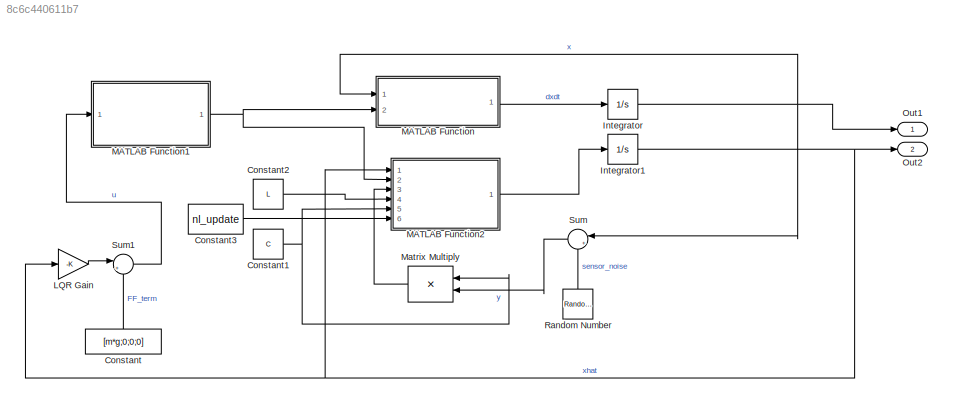
MODEL slx_8c6c440611b7
KIND model
CONFIG AbsTol = auto
CONFIG EnableMultiTasking = off
CONFIG FixedStep = auto
CONFIG MaxStep = auto
CONFIG MinStep = auto
CONFIG RelTol = 1e-3
CONFIG SampleTimeConstraint = Unconstrained
CONFIG Solver = VariableStepAuto
CONFIG SolverName = VariableStepAuto
CONFIG StartTime = 0.0
CONFIG StopTime = 10.0
BLOCK [Constant] Constant
  Value = [m*g;0;0;0]
  VectorParams1D = off
BLOCK [Constant] Constant1
  Value = C
BLOCK [Constant] Constant2
  Value = L
BLOCK [Constant] Constant3
  Value = nl_update
BLOCK [Integrator] Integrator
  InitialCondition = x0
  Ports = [1, 1]
BLOCK [Integrator] Integrator1
  InitialCondition = xhat0
  Ports = [1, 1]
BLOCK [Gain] LQR Gain 
  Gain = -K
  Multiplication = Matrix(K*u)
  OutDataTypeStr = Inherit: Inherit via internal rule
  ParamDataTypeStr = Inherit: Inherit via internal rule
  SaturateOnIntegerOverflow = off
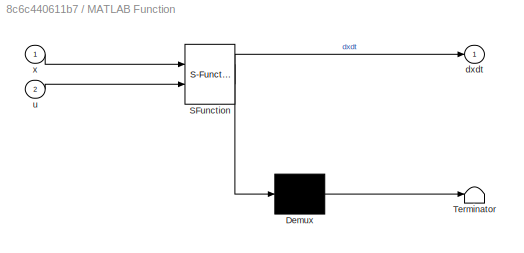
BLOCK [SubSystem] MATLAB Function
  ErrorFcn = Stateflow.Translate.translate
  PermitHierarchicalResolution = ExplicitOnly
  Ports = [2, 1]
  RequestExecContextInheritance = off
  SFBlockType = MATLAB Function
  TreatAsAtomicUnit = on
BLOCK [Demux] MATLAB Function/ Demux 
  Outputs = 1
  Ports = [1, 1]
BLOCK [S-Function] MATLAB Function/ SFunction 
  EnableBusSupport = on
  FunctionName = sf_sfun
  PortCounts = [2 2]
  Ports = [2, 2]
  SFcnIsStateOwnerBlock = off
  SFunctionDeploymentMode = off
  Tag = Stateflow S-Function quadrotor_linear_obsv_model_submission 2
BLOCK [Terminator] MATLAB Function/ Terminator 
BLOCK [Outport] MATLAB Function/dxdt
  IconDisplay = Port number
BLOCK [Inport] MATLAB Function/u
  IconDisplay = Port number
  Port = 2
BLOCK [Inport] MATLAB Function/x
  IconDisplay = Port number
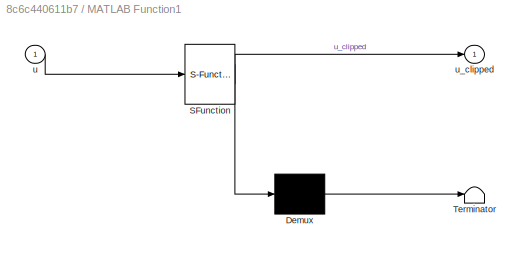
BLOCK [SubSystem] MATLAB Function1
  ErrorFcn = Stateflow.Translate.translate
  PermitHierarchicalResolution = ExplicitOnly
  Ports = [1, 1]
  RequestExecContextInheritance = off
  SFBlockType = MATLAB Function
  TreatAsAtomicUnit = on
BLOCK [Demux] MATLAB Function1/ Demux 
  Outputs = 1
  Ports = [1, 1]
BLOCK [S-Function] MATLAB Function1/ SFunction 
  EnableBusSupport = on
  FunctionName = sf_sfun
  PortCounts = [1 2]
  Ports = [1, 2]
  SFcnIsStateOwnerBlock = off
  SFunctionDeploymentMode = off
  Tag = Stateflow S-Function quadrotor_linear_obsv_model_submission 1
BLOCK [Terminator] MATLAB Function1/ Terminator 
BLOCK [Inport] MATLAB Function1/u
  IconDisplay = Port number
BLOCK [Outport] MATLAB Function1/u_clipped
  IconDisplay = Port number
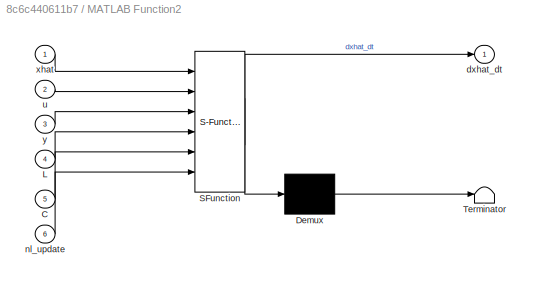
BLOCK [SubSystem] MATLAB Function2
  ErrorFcn = Stateflow.Translate.translate
  PermitHierarchicalResolution = ExplicitOnly
  Ports = [6, 1]
  RequestExecContextInheritance = off
  SFBlockType = MATLAB Function
  TreatAsAtomicUnit = on
BLOCK [Demux] MATLAB Function2/ Demux 
  Outputs = 1
  Ports = [1, 1]
BLOCK [S-Function] MATLAB Function2/ SFunction 
  EnableBusSupport = on
  FunctionName = sf_sfun
  PortCounts = [6 2]
  Ports = [6, 2]
  SFcnIsStateOwnerBlock = off
  SFunctionDeploymentMode = off
  Tag = Stateflow S-Function quadrotor_linear_obsv_model_submission 3
BLOCK [Terminator] MATLAB Function2/ Terminator 
BLOCK [Inport] MATLAB Function2/C
  IconDisplay = Port number
  Port = 5
BLOCK [Inport] MATLAB Function2/L
  IconDisplay = Port number
  Port = 4
BLOCK [Outport] MATLAB Function2/dxhat_dt
  IconDisplay = Port number
BLOCK [Inport] MATLAB Function2/nl_update
  IconDisplay = Port number
  Port = 6
BLOCK [Inport] MATLAB Function2/u
  IconDisplay = Port number
  Port = 2
BLOCK [Inport] MATLAB Function2/xhat
  IconDisplay = Port number
BLOCK [Inport] MATLAB Function2/y
  IconDisplay = Port number
  Port = 3
BLOCK [Product] Matrix Multiply
  InputSameDT = off
  Multiplication = Matrix(*)
  OutDataTypeStr = Inherit: Inherit via internal rule
  Ports = [2, 1]
  RndMeth = Floor
  SaturateOnIntegerOverflow = off
BLOCK [Outport] Out1
  IconDisplay = Port number
  SignalName = x
BLOCK [Outport] Out2
  IconDisplay = Port number
  Port = 2
  SignalName = xhat
BLOCK [RandomNumber] Random Number
  Mean = zeros(12,1)
  SampleTime = 0.1
  Variance = .0001*ones(12,1)
  VectorParams1D = off
BLOCK [Sum] Sum
  IconShape = round
  InputSameDT = off
  Inputs = |++
  OutDataTypeStr = Inherit: Inherit via internal rule
  Ports = [2, 1]
  SaturateOnIntegerOverflow = off
BLOCK [Sum] Sum1
  IconShape = round
  InputSameDT = off
  Inputs = |++
  OutDataTypeStr = Inherit: Inherit via internal rule
  Ports = [2, 1]
  SaturateOnIntegerOverflow = off
NET Constant1:1 -> MATLAB Function2:5, Matrix Multiply:1
LINE Constant2:1 -> MATLAB Function2:4
LINE Constant3:1 -> MATLAB Function2:6
LINE Constant:1 -> Sum1:2
NET Integrator1:1 -> LQR Gain :1, MATLAB Function2:1, Out2:1
NET Integrator:1 -> MATLAB Function:1, Out1:1, Sum:1
LINE LQR Gain :1 -> Sum1:1
NET MATLAB Function1:1 -> MATLAB Function2:2, MATLAB Function:2
LINE MATLAB Function2:1 -> Integrator1:1
LINE MATLAB Function:1 -> Integrator:1
LINE Matrix Multiply:1 -> MATLAB Function2:3
LINE Random Number:1 -> Sum:2
LINE Sum1:1 -> MATLAB Function1:1
LINE Sum:1 -> Matrix Multiply:2
note: NET lines group one-source signal fan-out (src -> all destinations, sorted); 1:1 wires keep LINE
CHART MATLAB Function1 states=1 transitions=1
  STATE_LABEL 'eML_blk_kernel()'
  STATE_LABEL 'SCRIPT:\nfunction u_clipped = input_norm(u)\nu_clipped = zeros(4,1);\nu_clipped(1) = max([min([u(1), 16]),0]);\nu_clipped(2) = max([min([u(2), .432]),-.432]);\nu_clipped(3) = max([min([u(3), .432]),-.432]);\nu_clipped(4) = max([min([u(4), .1]),-.1]);\n'
CHART MATLAB Function states=1 transitions=1
  STATE_LABEL 'eML_blk_kernel()'
  STATE_LABEL 'SCRIPT:\nfunction dxdt = quadrotor_dynamics(x, u)\n    m = 0.6;\n    Jx = 0.0092;\n    Jy = 0.0091;\n    Jz = 0.0101;\n    g = 9.81;\n    px_dot = x(1);\n%   px =     x(2);\n    py_dot = x(3);\n%   py =     x(4);\n    pz_dot = x(5);\n%   pz =     x(6);\n    p =      x(7);\n    phi =    x(8);\n    q =      x(9); \n    theta =  x(10);\n    r =      x(11);\n    psi =    x(12);\n    \n    u_clipped = u;\n    \n    F = u_cl...<+567ch>'
CHART MATLAB Function2 states=1 transitions=1
  STATE_LABEL 'eML_blk_kernel()'
  STATE_LABEL 'SCRIPT:\nfunction dxhat_dt = observer_dynamics(xhat, u, y, L, C, nl_update)\n% dx_hat_dt = A*xhat + B*u + L*(y-xhat);\n    A = [0         0         0         0         0         0         0         0         0   -9.8000         0         0;\n    1.0000         0         0         0         0         0         0         0         0         0         0         0;\n         0         0         0         0...<+3004ch>'
